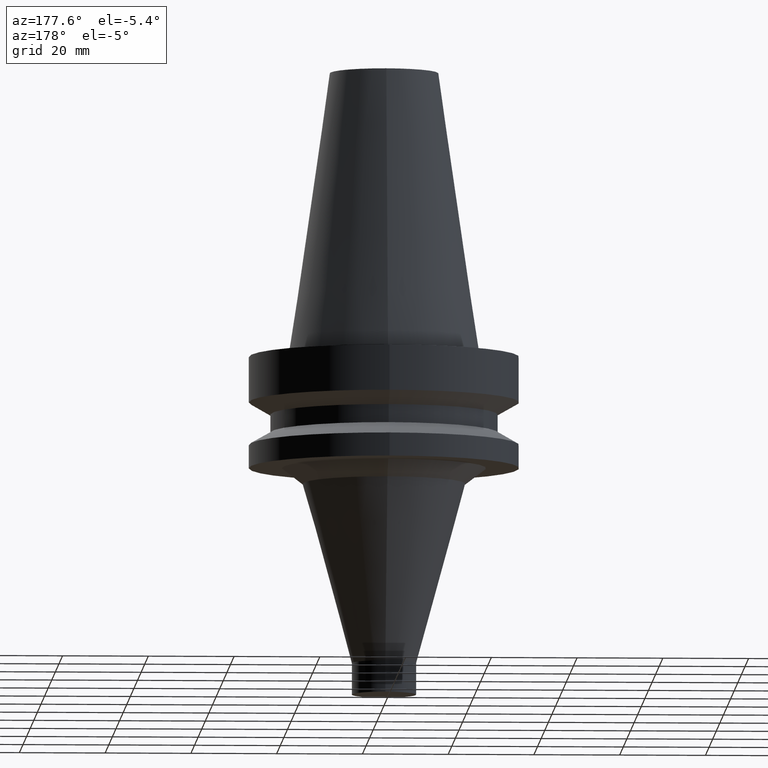
[diagram: clean part render]
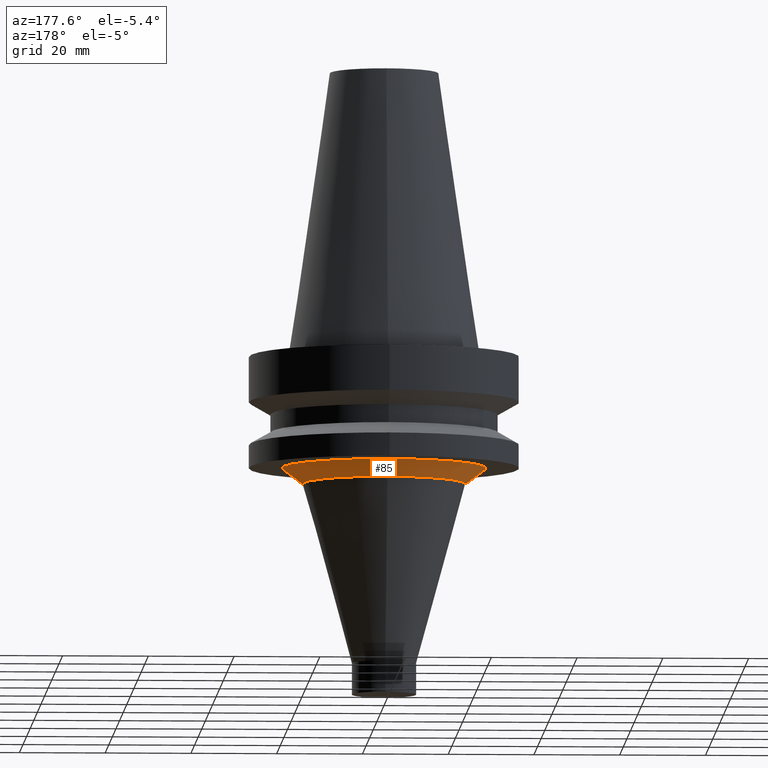
[diagram: same view with one face highlighted and labeled with its STEP entity id]
A machine part, auxiliary view. The second image highlights one B-rep face of the part: STEP entity #85.
In plain terms, the highlighted conical surface has half-angle 52.656 deg.
Its self-contained STEP definition (entity closure, byte-faithful):
#85=ADVANCED_FACE('',(#119,#120),#121,.T.);
#119=FACE_BOUND('',#159,.T.);
#120=FACE_BOUND('',#160,.T.);
#121=CONICAL_SURFACE('',#161,21.4037484705266,0.919027712468367);
#159=EDGE_LOOP('',(#219));
#160=EDGE_LOOP('',(#220));
#161=AXIS2_PLACEMENT_3D('',#221,#222,#223);
#219=ORIENTED_EDGE('',*,*,#248,.F.);
#220=ORIENTED_EDGE('',*,*,#247,.T.);
#221=CARTESIAN_POINT('',(1.76592708516233E-015,3.53185417032466E-015,-28.8397779080767));
#222=DIRECTION('',(-6.12323399573677E-017,-1.22464679914735E-016,1.0));
#223=DIRECTION('',(-1.23259516440783E-032,1.0,1.22464679914735E-016));
#247=EDGE_CURVE('',#269,#269,#270,.T.);
#248=EDGE_CURVE('',#271,#271,#272,.T.);
#269=VERTEX_POINT('',#295);
#270=CIRCLE('',#296,23.81499437);
#271=VERTEX_POINT('',#297);
#272=CIRCLE('',#298,18.9925025710533);
#295=CARTESIAN_POINT('',(1.65327317884893E-015,23.81499437,-27.0));
#296=AXIS2_PLACEMENT_3D('',#330,#331,#332);
#297=CARTESIAN_POINT('',(1.87858099147574E-015,18.9925025710533,-30.6795558161533));
#298=AXIS2_PLACEMENT_3D('',#333,#334,#335);
#330=CARTESIAN_POINT('',(1.65327317884893E-015,3.30654635769785E-015,-27.0));
#331=DIRECTION('',(6.12323399573677E-017,1.22464679914735E-016,-1.0));
#332=DIRECTION('',(-1.23259516440783E-032,1.0,1.22464679914735E-016));
#333=CARTESIAN_POINT('',(1.87858099147574E-015,3.75716198295147E-015,-30.6795558161533));
#334=DIRECTION('',(6.12323399573677E-017,1.22464679914735E-016,-1.0));
#335=DIRECTION('',(-1.23259516440783E-032,1.0,1.22464679914735E-016));